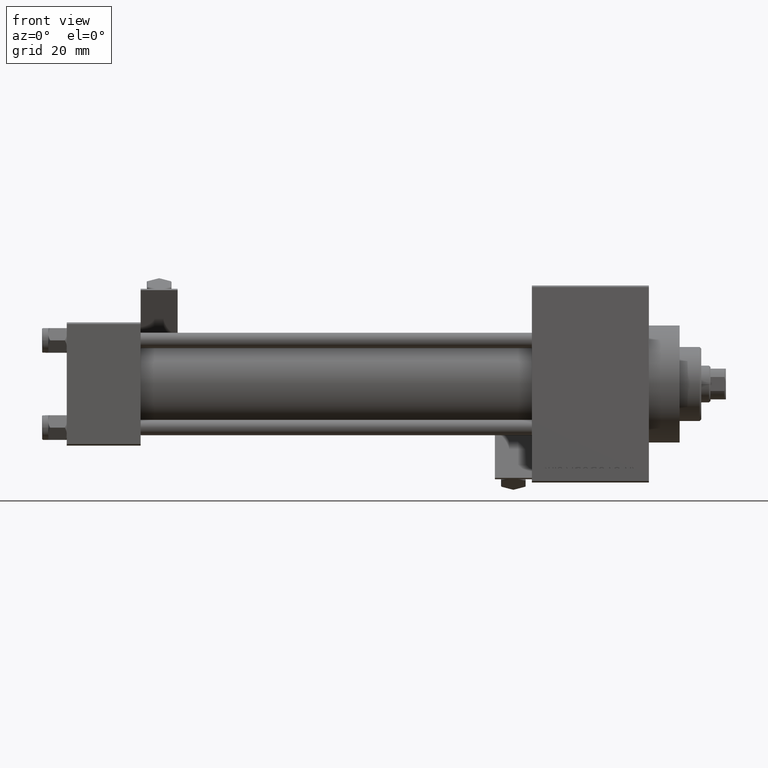
[diagram: clean part render]
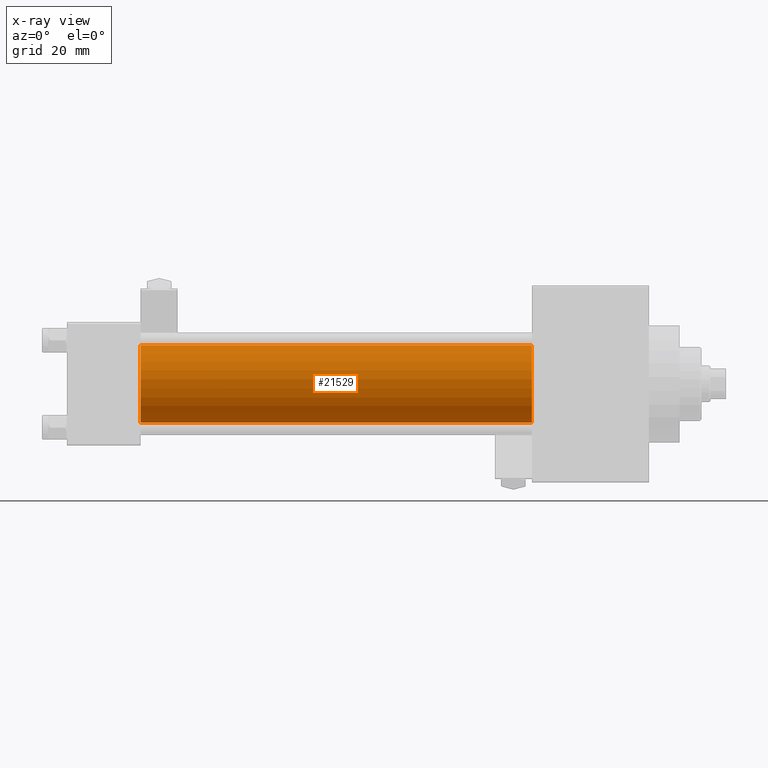
[diagram: x-ray — body ghosted, one internal face saturated and labeled with its STEP entity id]
A machine part, front view, then the same camera in x-ray: the body is ghosted and one INTERNAL B-rep face — a face not visible from any outside direction — is saturated and labeled: STEP entity #21529.
In plain terms, the highlighted cylindrical surface (partial cylindrical patch) has radius 12.5 mm, axis along (-1, -0, -0).
Its self-contained STEP definition (entity closure, byte-faithful):
#95 = CARTESIAN_POINT ( 'NONE',  ( 24.00000000000000000, -1.071276715031019515E-15, -12.49999999999999645 ) ) ;
#652 = LINE ( 'NONE', #42992, #41299 ) ;
#1201 = DIRECTION ( 'NONE',  ( 1.000000000000000000, 0.000000000000000000, 0.000000000000000000 ) ) ;
#1883 = VERTEX_POINT ( 'NONE', #95 ) ;
#2059 = CYLINDRICAL_SURFACE ( 'NONE', #39344, 12.49999999999999645 ) ;
#2436 = ORIENTED_EDGE ( 'NONE', *, *, #9804, .F. ) ;
#5114 = EDGE_CURVE ( 'NONE', #18725, #1883, #652, .T. ) ;
#6308 = CIRCLE ( 'NONE', #20846, 12.49999999999999645 ) ;
#6796 = CARTESIAN_POINT ( 'NONE',  ( 24.00000000000000000, -2.602085213965210642E-15, 12.49999999999999645 ) ) ;
#9063 = CARTESIAN_POINT ( 'NONE',  ( 151.0000000000000000, -2.602085213965210642E-15, 0.000000000000000000 ) ) ;
#9082 = CARTESIAN_POINT ( 'NONE',  ( 151.0000000000000000, -1.071276715031019515E-15, -12.49999999999999645 ) ) ;
#9464 = ORIENTED_EDGE ( 'NONE', *, *, #27042, .F. ) ;
#9804 = EDGE_CURVE ( 'NONE', #45083, #48890, #48679, .T. ) ;
#11445 = ORIENTED_EDGE ( 'NONE', *, *, #5114, .T. ) ;
#12102 = CARTESIAN_POINT ( 'NONE',  ( 24.00000000000000000, -2.602085213965210642E-15, 0.000000000000000000 ) ) ;
#17515 = CARTESIAN_POINT ( 'NONE',  ( 151.0000000000000000, -2.602085213965210642E-15, 0.000000000000000000 ) ) ;
#17997 = CARTESIAN_POINT ( 'NONE',  ( 151.0000000000000000, -2.602085213965210642E-15, 12.49999999999999645 ) ) ;
#18712 = AXIS2_PLACEMENT_3D ( 'NONE', #9063, #1201, #24516 ) ;
#18725 = VERTEX_POINT ( 'NONE', #9082 ) ;
#19514 = CIRCLE ( 'NONE', #18712, 12.49999999999999645 ) ;
#20820 = DIRECTION ( 'NONE',  ( 0.000000000000000000, 0.000000000000000000, 1.000000000000000000 ) ) ;
#20846 = AXIS2_PLACEMENT_3D ( 'NONE', #12102, #35423, #42791 ) ;
#21077 = ORIENTED_EDGE ( 'NONE', *, *, #42577, .T. ) ;
#21529 = ADVANCED_FACE ( 'NONE', ( #28177 ), #2059, .F. ) ;
#24429 = VECTOR ( 'NONE', #48929, 1000.000000000000000 ) ;
#24516 = DIRECTION ( 'NONE',  ( 0.000000000000000000, 0.000000000000000000, -1.000000000000000000 ) ) ;
#27042 = EDGE_CURVE ( 'NONE', #48890, #1883, #6308, .T. ) ;
#28177 = FACE_OUTER_BOUND ( 'NONE', #42018, .T. ) ;
#35423 = DIRECTION ( 'NONE',  ( 1.000000000000000000, 0.000000000000000000, 0.000000000000000000 ) ) ;
#39344 = AXIS2_PLACEMENT_3D ( 'NONE', #17515, #48200, #20820 ) ;
#41299 = VECTOR ( 'NONE', #47542, 1000.000000000000000 ) ;
#42018 = EDGE_LOOP ( 'NONE', ( #21077, #11445, #9464, #2436 ) ) ;
#42577 = EDGE_CURVE ( 'NONE', #45083, #18725, #19514, .T. ) ;
#42791 = DIRECTION ( 'NONE',  ( 0.000000000000000000, 0.000000000000000000, -1.000000000000000000 ) ) ;
#42992 = CARTESIAN_POINT ( 'NONE',  ( 151.0000000000000000, -1.071276715031019515E-15, -12.49999999999999645 ) ) ;
#45083 = VERTEX_POINT ( 'NONE', #49006 ) ;
#47542 = DIRECTION ( 'NONE',  ( -1.000000000000000000, -0.000000000000000000, -0.000000000000000000 ) ) ;
#48200 = DIRECTION ( 'NONE',  ( -1.000000000000000000, -0.000000000000000000, -0.000000000000000000 ) ) ;
#48679 = LINE ( 'NONE', #17997, #24429 ) ;
#48890 = VERTEX_POINT ( 'NONE', #6796 ) ;
#48929 = DIRECTION ( 'NONE',  ( -1.000000000000000000, -0.000000000000000000, -0.000000000000000000 ) ) ;
#49006 = CARTESIAN_POINT ( 'NONE',  ( 151.0000000000000000, -2.602085213965210642E-15, 12.49999999999999645 ) ) ;